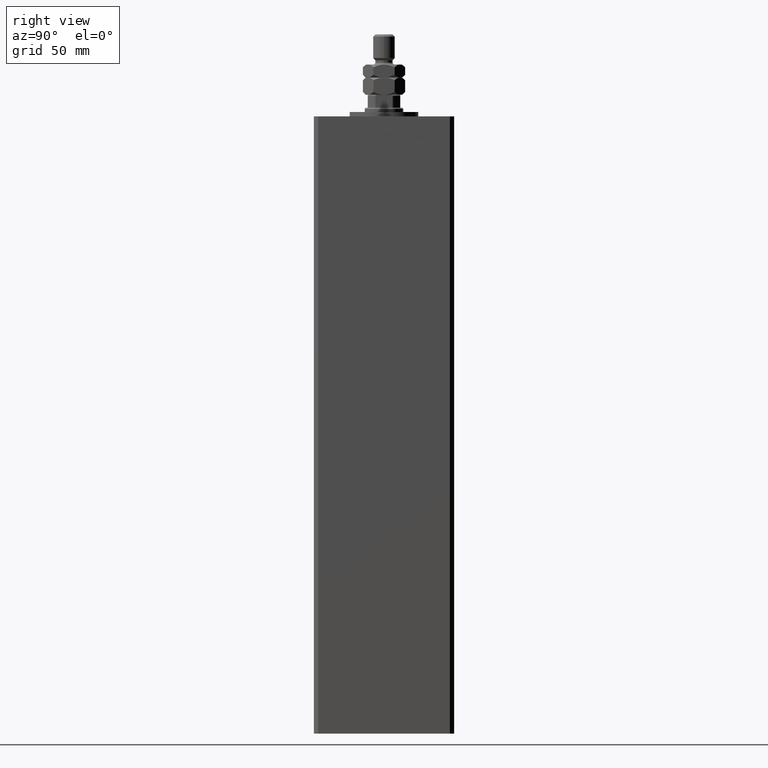
[diagram: clean part render]
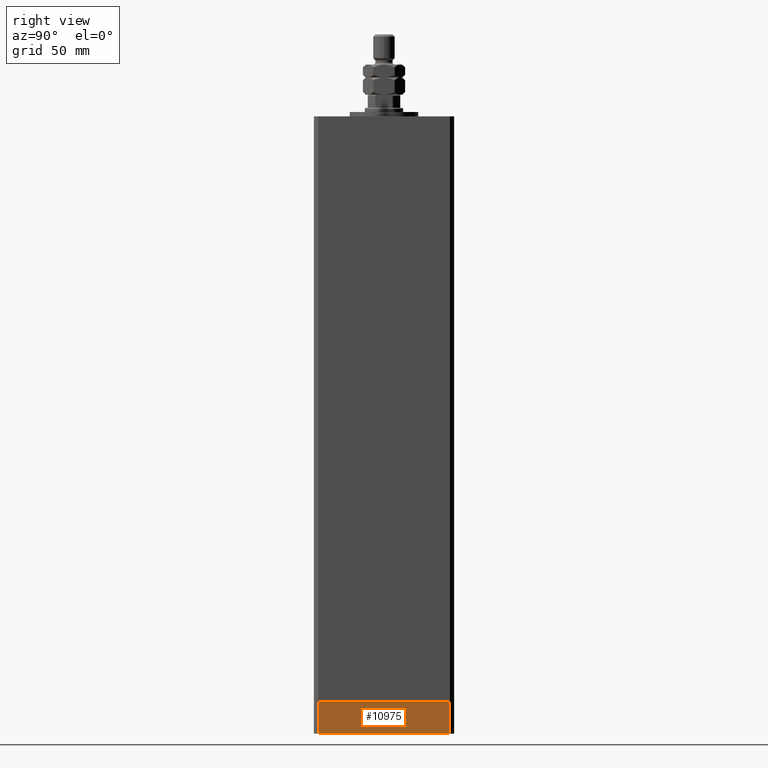
[diagram: same view with one face highlighted and labeled with its STEP entity id]
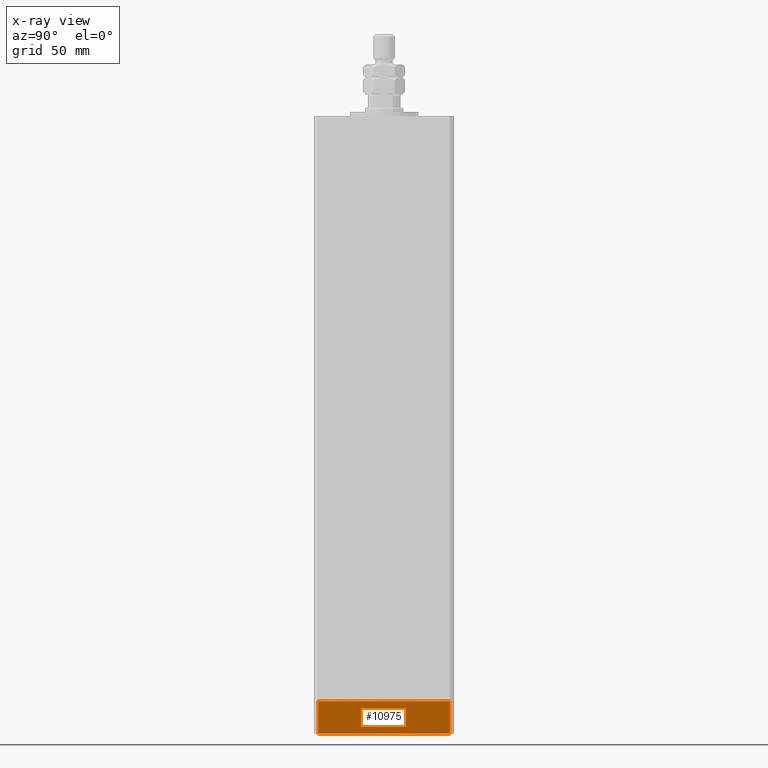
[diagram: x-ray of the same camera — body ghosted, the highlighted face saturated]
A machine part, right view. The second image highlights one B-rep face of the part: STEP entity #10975.
The next image is the same camera in x-ray: the body ghosted, the highlighted face saturated — about 0% of this face is hidden behind the body in this view.
In plain terms, the highlighted planar face has unit normal (1, -0, 0).
Its self-contained STEP definition (entity closure, byte-faithful):
#1067 = DIRECTION ( 'NONE',  ( -1.000000000000000000, -4.550094363217855288E-16, 0.000000000000000000 ) ) ;
#3027 = ORIENTED_EDGE ( 'NONE', *, *, #13256, .F. ) ;
#3269 = VECTOR ( 'NONE', #20703, 1000.000000000000000 ) ;
#3335 = CARTESIAN_POINT ( 'NONE',  ( -37.49999999999998579, -30.50000000000001421, -15.00000000000000000 ) ) ;
#5165 = FACE_OUTER_BOUND ( 'NONE', #17296, .T. ) ;
#5277 = ORIENTED_EDGE ( 'NONE', *, *, #46827, .F. ) ;
#7137 = LINE ( 'NONE', #3335, #36978 ) ;
#8111 = VERTEX_POINT ( 'NONE', #21381 ) ;
#10160 = VERTEX_POINT ( 'NONE', #14253 ) ;
#10472 = CARTESIAN_POINT ( 'NONE',  ( -37.50000000000001421, 30.49999999999998579, -15.00000000000000000 ) ) ;
#10975 = ADVANCED_FACE ( 'NONE', ( #5165 ), #21725, .T. ) ;
#12291 = CARTESIAN_POINT ( 'NONE',  ( -37.50000000000001421, 30.49999999999998579, 0.000000000000000000 ) ) ;
#12721 = ORIENTED_EDGE ( 'NONE', *, *, #13975, .T. ) ;
#13256 = EDGE_CURVE ( 'NONE', #8111, #10160, #48939, .T. ) ;
#13975 = EDGE_CURVE ( 'NONE', #23270, #10160, #7137, .T. ) ;
#14253 = CARTESIAN_POINT ( 'NONE',  ( -37.49999999999998579, -30.50000000000001421, 0.000000000000000000 ) ) ;
#15026 = DIRECTION ( 'NONE',  ( 0.000000000000000000, 0.000000000000000000, 1.000000000000000000 ) ) ;
#15462 = EDGE_CURVE ( 'NONE', #43790, #23270, #19782, .T. ) ;
#17296 = EDGE_LOOP ( 'NONE', ( #3027, #5277, #20069, #12721 ) ) ;
#19782 = LINE ( 'NONE', #31189, #47426 ) ;
#20069 = ORIENTED_EDGE ( 'NONE', *, *, #15462, .T. ) ;
#20703 = DIRECTION ( 'NONE',  ( 4.550094363217855288E-16, -1.000000000000000000, 0.000000000000000000 ) ) ;
#21381 = CARTESIAN_POINT ( 'NONE',  ( -37.50000000000001421, 30.49999999999998579, 0.000000000000000000 ) ) ;
#21725 = PLANE ( 'NONE',  #45694 ) ;
#23270 = VERTEX_POINT ( 'NONE', #51013 ) ;
#26888 = VECTOR ( 'NONE', #42172, 1000.000000000000000 ) ;
#29135 = CARTESIAN_POINT ( 'NONE',  ( -37.50000000000001421, 30.49999999999998579, -15.00000000000000000 ) ) ;
#31189 = CARTESIAN_POINT ( 'NONE',  ( -37.50000000000001421, 30.49999999999998579, -15.00000000000000000 ) ) ;
#36978 = VECTOR ( 'NONE', #15026, 1000.000000000000000 ) ;
#37820 = LINE ( 'NONE', #29135, #26888 ) ;
#38286 = CARTESIAN_POINT ( 'NONE',  ( -37.50000000000001421, 30.49999999999998579, -15.00000000000000000 ) ) ;
#42172 = DIRECTION ( 'NONE',  ( 0.000000000000000000, 0.000000000000000000, 1.000000000000000000 ) ) ;
#43790 = VERTEX_POINT ( 'NONE', #10472 ) ;
#45694 = AXIS2_PLACEMENT_3D ( 'NONE', #38286, #1067, #50788 ) ;
#46827 = EDGE_CURVE ( 'NONE', #43790, #8111, #37820, .T. ) ;
#47426 = VECTOR ( 'NONE', #52136, 1000.000000000000000 ) ;
#48939 = LINE ( 'NONE', #12291, #3269 ) ;
#50788 = DIRECTION ( 'NONE',  ( 4.550094363217855288E-16, -1.000000000000000000, 0.000000000000000000 ) ) ;
#51013 = CARTESIAN_POINT ( 'NONE',  ( -37.49999999999998579, -30.50000000000001421, -15.00000000000000000 ) ) ;
#52136 = DIRECTION ( 'NONE',  ( 4.550094363217855288E-16, -1.000000000000000000, 0.000000000000000000 ) ) ;